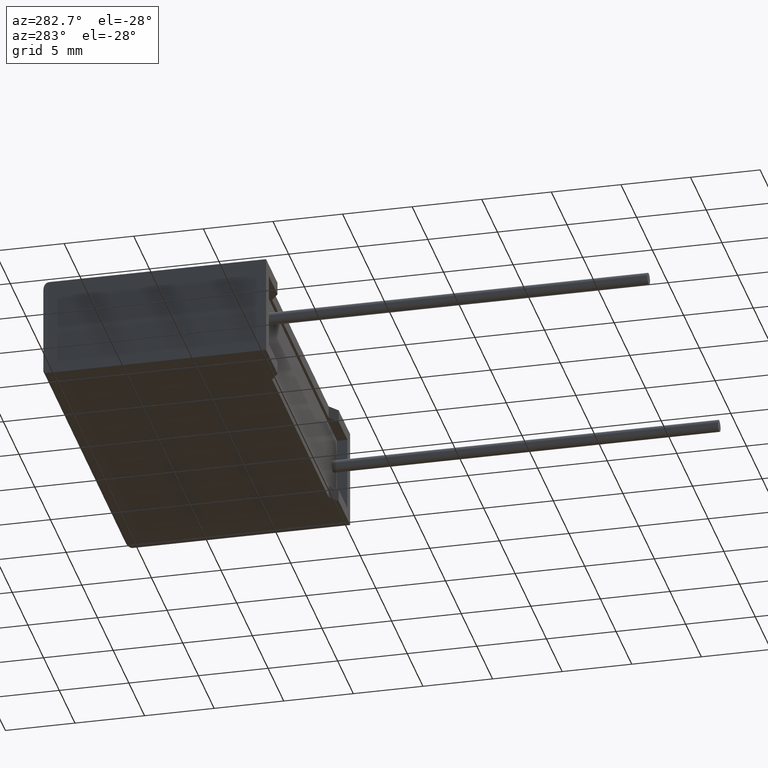
[diagram: clean part render]
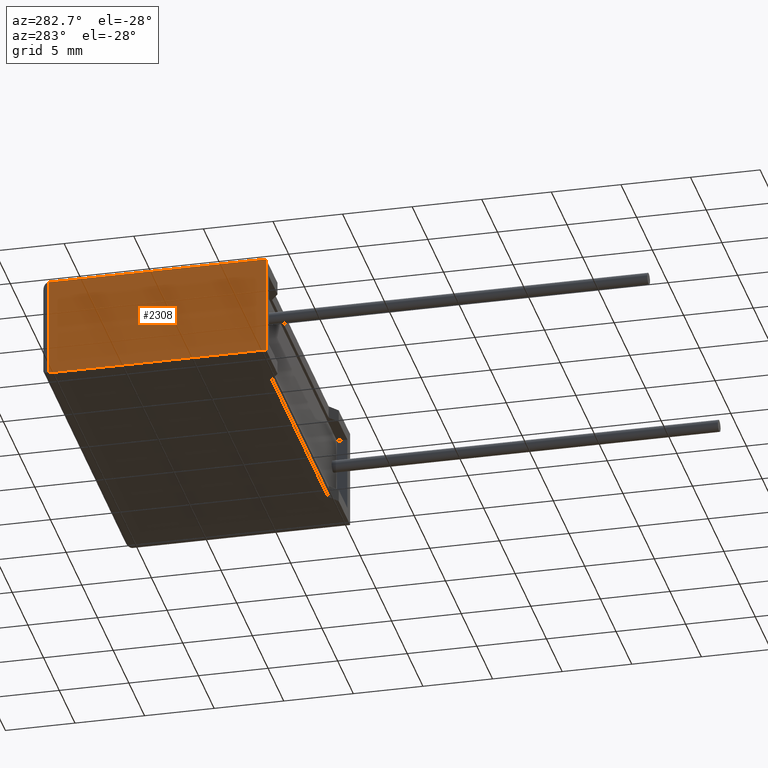
[diagram: same view with one face highlighted and labeled with its STEP entity id]
A machine part, auxiliary view. The second image highlights one B-rep face of the part: STEP entity #2308.
In plain terms, the highlighted planar face has unit normal (1, 0, 0).
Its self-contained STEP definition (entity closure, byte-faithful):
#95 = EDGE_LOOP ( 'NONE', ( #323, #1213, #811, #441 ) ) ;
#275 = VECTOR ( 'NONE', #2040, 1000.000000000000000 ) ;
#323 = ORIENTED_EDGE ( 'NONE', *, *, #1913, .F. ) ;
#326 = DIRECTION ( 'NONE',  ( -0.000000000000000000, -1.000000000000000000, -0.000000000000000000 ) ) ;
#441 = ORIENTED_EDGE ( 'NONE', *, *, #1900, .F. ) ;
#508 = VERTEX_POINT ( 'NONE', #1464 ) ;
#545 = CARTESIAN_POINT ( 'NONE',  ( 0.000000000000000000, 0.000000000000000000, 0.000000000000000000 ) ) ;
#650 = VERTEX_POINT ( 'NONE', #2025 ) ;
#810 = LINE ( 'NONE', #2223, #1371 ) ;
#811 = ORIENTED_EDGE ( 'NONE', *, *, #1782, .T. ) ;
#844 = LINE ( 'NONE', #1541, #2153 ) ;
#1098 = LINE ( 'NONE', #2465, #275 ) ;
#1111 = PLANE ( 'NONE',  #2086 ) ;
#1123 = EDGE_CURVE ( 'NONE', #650, #508, #810, .T. ) ;
#1130 = CARTESIAN_POINT ( 'NONE',  ( 0.000000000000000000, 0.000000000000000000, 7.200000000000000178 ) ) ;
#1213 = ORIENTED_EDGE ( 'NONE', *, *, #1123, .T. ) ;
#1220 = VERTEX_POINT ( 'NONE', #2033 ) ;
#1247 = LINE ( 'NONE', #545, #3059 ) ;
#1371 = VECTOR ( 'NONE', #2005, 1000.000000000000000 ) ;
#1464 = CARTESIAN_POINT ( 'NONE',  ( 0.000000000000000000, 15.59999999999999964, 0.000000000000000000 ) ) ;
#1541 = CARTESIAN_POINT ( 'NONE',  ( 0.000000000000000000, 0.000000000000000000, 7.200000000000000178 ) ) ;
#1782 = EDGE_CURVE ( 'NONE', #508, #1788, #1247, .T. ) ;
#1788 = VERTEX_POINT ( 'NONE', #2436 ) ;
#1799 = DIRECTION ( 'NONE',  ( -0.000000000000000000, -0.000000000000000000, -1.000000000000000000 ) ) ;
#1900 = EDGE_CURVE ( 'NONE', #1220, #1788, #844, .T. ) ;
#1913 = EDGE_CURVE ( 'NONE', #650, #1220, #1098, .T. ) ;
#2005 = DIRECTION ( 'NONE',  ( 0.000000000000000000, 0.000000000000000000, -1.000000000000000000 ) ) ;
#2025 = CARTESIAN_POINT ( 'NONE',  ( 0.000000000000000000, 15.59999999999999964, 7.200000000000000178 ) ) ;
#2033 = CARTESIAN_POINT ( 'NONE',  ( 0.000000000000000000, 0.000000000000000000, 7.200000000000000178 ) ) ;
#2040 = DIRECTION ( 'NONE',  ( -0.000000000000000000, -1.000000000000000000, -0.000000000000000000 ) ) ;
#2086 = AXIS2_PLACEMENT_3D ( 'NONE', #1130, #2519, #3030 ) ;
#2113 = FACE_OUTER_BOUND ( 'NONE', #95, .T. ) ;
#2153 = VECTOR ( 'NONE', #1799, 1000.000000000000000 ) ;
#2223 = CARTESIAN_POINT ( 'NONE',  ( 0.000000000000000000, 15.59999999999999964, 7.200000000000000178 ) ) ;
#2308 = ADVANCED_FACE ( 'NONE', ( #2113 ), #1111, .F. ) ;
#2436 = CARTESIAN_POINT ( 'NONE',  ( 0.000000000000000000, 0.000000000000000000, 0.000000000000000000 ) ) ;
#2465 = CARTESIAN_POINT ( 'NONE',  ( 0.000000000000000000, 0.000000000000000000, 7.200000000000000178 ) ) ;
#2519 = DIRECTION ( 'NONE',  ( 1.000000000000000000, 0.000000000000000000, 0.000000000000000000 ) ) ;
#3030 = DIRECTION ( 'NONE',  ( 0.000000000000000000, 0.000000000000000000, -1.000000000000000000 ) ) ;
#3059 = VECTOR ( 'NONE', #326, 1000.000000000000000 ) ;